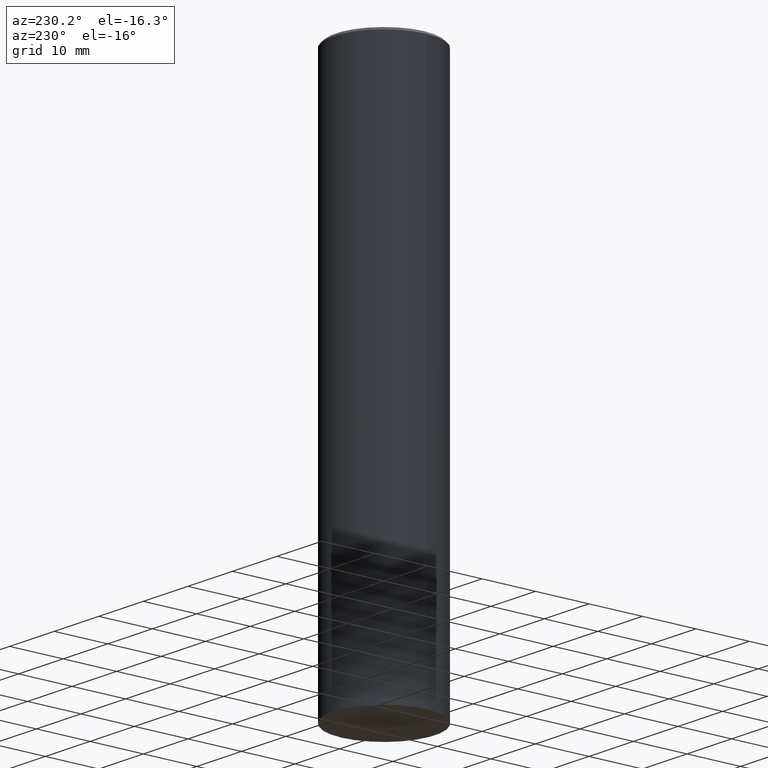
[diagram: clean part render]
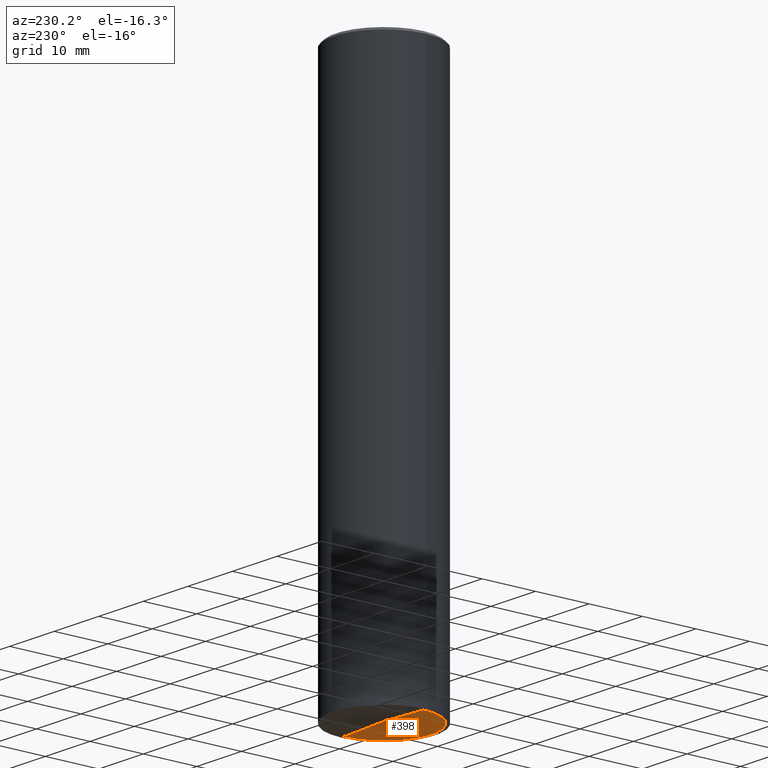
[diagram: same view with one face highlighted and labeled with its STEP entity id]
A machine part, auxiliary view. The second image highlights one B-rep face of the part: STEP entity #398.
In plain terms, the highlighted conical surface has half-angle 88 deg.
Its self-contained STEP definition (entity closure, byte-faithful):
#9 = VERTEX_POINT ( 'NONE', #75 ) ;
#26 = EDGE_CURVE ( 'NONE', #371, #9, #385, .T. ) ;
#59 = CARTESIAN_POINT ( 'NONE',  ( -0.3510000000000000342, -1.151417418279978956E-14, -3.999790555173021733 ) ) ;
#75 = CARTESIAN_POINT ( 'NONE',  ( 0.3510000000000000342, -1.637322887988547930E-14, -3.999790555173021733 ) ) ;
#77 = DIRECTION ( 'NONE',  ( -0.9993908270190957621, 6.856857904024558837E-15, -0.03489949670250019204 ) ) ;
#92 = CARTESIAN_POINT ( 'NONE',  ( 9.781363033949554228E-29, -1.396519408266767050E-14, -3.999790555173021733 ) ) ;
#130 = ORIENTED_EDGE ( 'NONE', *, *, #26, .T. ) ;
#154 = DIRECTION ( 'NONE',  ( -2.445468806185136597E-29, 3.491481338843145583E-15, 1.000000000000000000 ) ) ;
#156 = CARTESIAN_POINT ( 'NONE',  ( -0.3510000000000000342, -1.151417418279978956E-14, -3.999790555173021733 ) ) ;
#159 = EDGE_CURVE ( 'NONE', #375, #9, #339, .T. ) ;
#161 = DIRECTION ( 'NONE',  ( -1.000000000000000000, 6.982962677686268288E-15, 0.000000000000000000 ) ) ;
#199 = ORIENTED_EDGE ( 'NONE', *, *, #159, .F. ) ;
#205 = VECTOR ( 'NONE', #424, 39.37007874015748143 ) ;
#211 = CARTESIAN_POINT ( 'NONE',  ( 0.3510000000000000342, -1.637322887988547930E-14, -3.999790555173021733 ) ) ;
#216 = AXIS2_PLACEMENT_3D ( 'NONE', #92, #358, #161 ) ;
#218 = EDGE_CURVE ( 'NONE', #371, #375, #394, .T. ) ;
#254 = VECTOR ( 'NONE', #77, 39.37007874015748143 ) ;
#322 = CONICAL_SURFACE ( 'NONE', #216, 0.3510000000000000342, 1.535889741755010807 ) ;
#326 = FACE_OUTER_BOUND ( 'NONE', #332, .T. ) ;
#331 = CARTESIAN_POINT ( 'NONE',  ( 9.749442627304858197E-29, -1.392518487239983746E-14, -3.987533365081418424 ) ) ;
#332 = EDGE_LOOP ( 'NONE', ( #410, #130, #199 ) ) ;
#339 = CIRCLE ( 'NONE', #354, 0.3510000000000000342 ) ;
#353 = DIRECTION ( 'NONE',  ( 1.000000000000000000, -6.982962677686268288E-15, 0.000000000000000000 ) ) ;
#354 = AXIS2_PLACEMENT_3D ( 'NONE', #401, #154, #353 ) ;
#358 = DIRECTION ( 'NONE',  ( 2.445468806185136597E-29, -3.491481338843145583E-15, -1.000000000000000000 ) ) ;
#371 = VERTEX_POINT ( 'NONE', #331 ) ;
#375 = VERTEX_POINT ( 'NONE', #59 ) ;
#385 = LINE ( 'NONE', #211, #205 ) ;
#394 = LINE ( 'NONE', #156, #254 ) ;
#398 = ADVANCED_FACE ( 'NONE', ( #326 ), #322, .F. ) ;
#401 = CARTESIAN_POINT ( 'NONE',  ( 9.781363033949554228E-29, -1.396519408266767050E-14, -3.999790555173021733 ) ) ;
#410 = ORIENTED_EDGE ( 'NONE', *, *, #218, .F. ) ;
#424 = DIRECTION ( 'NONE',  ( 0.9993908270190957621, -6.978169709227539121E-15, -0.03489949670250019204 ) ) ;